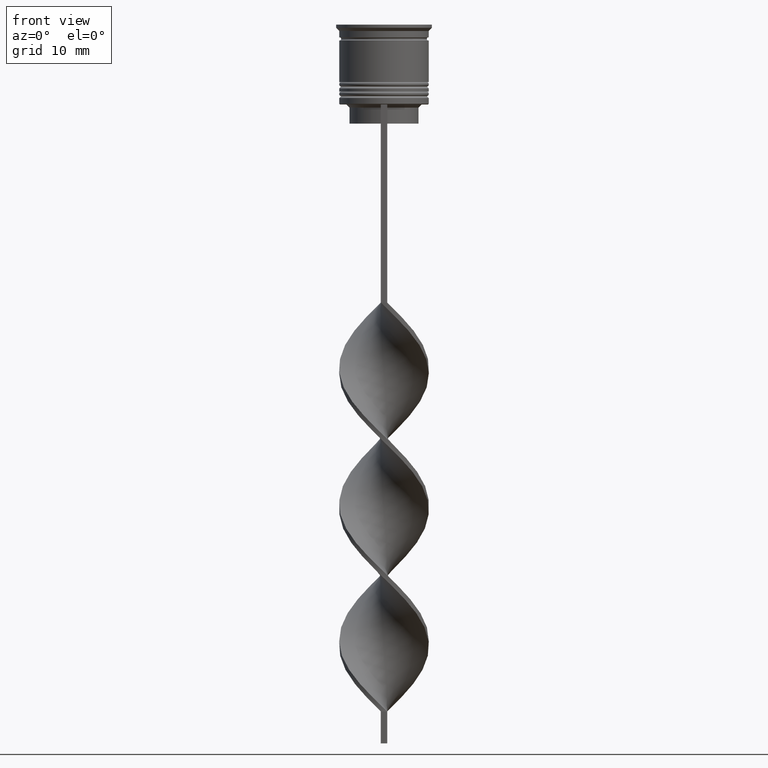
[diagram: clean part render]
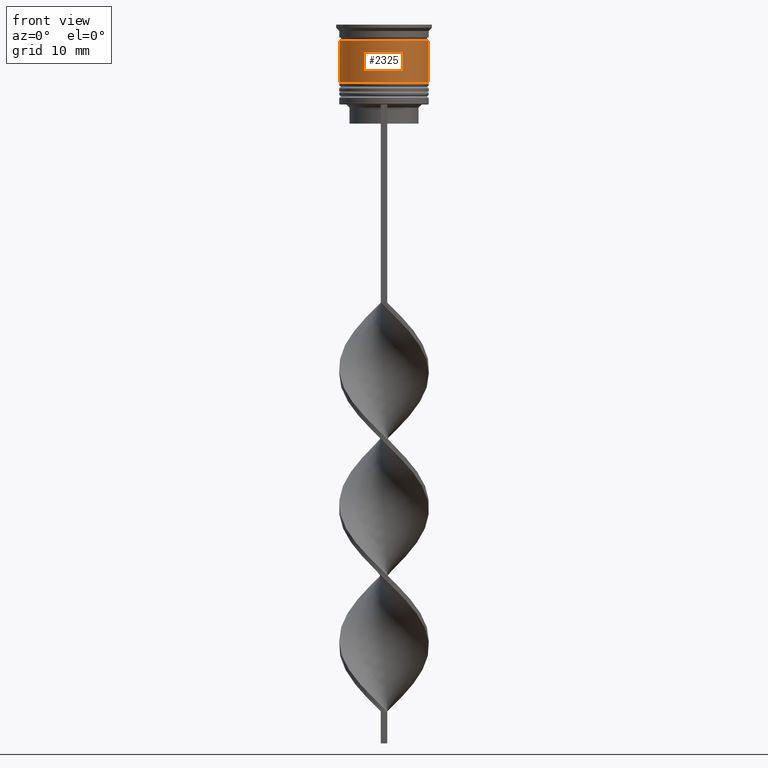
[diagram: same view with one face highlighted and labeled with its STEP entity id]
A machine part, front view. The second image highlights one B-rep face of the part: STEP entity #2325.
In plain terms, the highlighted cylindrical surface (partial cylindrical patch) has radius 7 mm, axis along (-0, -0, 1).
Its self-contained STEP definition (entity closure, byte-faithful):
#80 = CARTESIAN_POINT ( 'NONE',  ( -6.999999999999997335, 8.572527594031471218E-16, -2.500000000000000444 ) ) ;
#279 = CARTESIAN_POINT ( 'NONE',  ( 7.000000000000000888, 0.000000000000000000, -9.000000000000001776 ) ) ;
#294 = EDGE_CURVE ( 'NONE', #536, #2817, #3543, .T. ) ;
#362 = CYLINDRICAL_SURFACE ( 'NONE', #2469, 6.999999999999999112 ) ;
#473 = CARTESIAN_POINT ( 'NONE',  ( -6.999999999999999112, 8.572527594031472204E-16, 0.000000000000000000 ) ) ;
#503 = CARTESIAN_POINT ( 'NONE',  ( 0.000000000000000000, 0.000000000000000000, -9.000000000000001776 ) ) ;
#536 = VERTEX_POINT ( 'NONE', #279 ) ;
#598 = CIRCLE ( 'NONE', #3402, 6.999999999999997335 ) ;
#659 = DIRECTION ( 'NONE',  ( -0.000000000000000000, -0.000000000000000000, 1.000000000000000000 ) ) ;
#680 = DIRECTION ( 'NONE',  ( 1.000000000000000000, 0.000000000000000000, 0.000000000000000000 ) ) ;
#745 = DIRECTION ( 'NONE',  ( -0.000000000000000000, -0.000000000000000000, 1.000000000000000000 ) ) ;
#777 = EDGE_CURVE ( 'NONE', #3562, #2812, #959, .T. ) ;
#831 = CARTESIAN_POINT ( 'NONE',  ( -7.000000000000000888, 8.572527594031474176E-16, -9.000000000000001776 ) ) ;
#959 = LINE ( 'NONE', #473, #2331 ) ;
#1032 = CARTESIAN_POINT ( 'NONE',  ( 6.999999999999999112, 0.000000000000000000, 0.000000000000000000 ) ) ;
#1096 = DIRECTION ( 'NONE',  ( -0.000000000000000000, -0.000000000000000000, 1.000000000000000000 ) ) ;
#1409 = CIRCLE ( 'NONE', #3459, 7.000000000000000888 ) ;
#1624 = VECTOR ( 'NONE', #745, 1000.000000000000000 ) ;
#1686 = EDGE_LOOP ( 'NONE', ( #2109, #2592, #3418, #2345 ) ) ;
#1730 = EDGE_CURVE ( 'NONE', #3562, #536, #1409, .T. ) ;
#1763 = CARTESIAN_POINT ( 'NONE',  ( 6.999999999999997335, 0.000000000000000000, -2.500000000000000444 ) ) ;
#2082 = DIRECTION ( 'NONE',  ( -0.000000000000000000, -0.000000000000000000, 1.000000000000000000 ) ) ;
#2109 = ORIENTED_EDGE ( 'NONE', *, *, #777, .F. ) ;
#2325 = ADVANCED_FACE ( 'NONE', ( #2615 ), #362, .T. ) ;
#2331 = VECTOR ( 'NONE', #2082, 1000.000000000000000 ) ;
#2345 = ORIENTED_EDGE ( 'NONE', *, *, #3250, .F. ) ;
#2469 = AXIS2_PLACEMENT_3D ( 'NONE', #3187, #2633, #680 ) ;
#2592 = ORIENTED_EDGE ( 'NONE', *, *, #1730, .T. ) ;
#2608 = DIRECTION ( 'NONE',  ( 1.000000000000000000, 0.000000000000000000, 0.000000000000000000 ) ) ;
#2615 = FACE_OUTER_BOUND ( 'NONE', #1686, .T. ) ;
#2633 = DIRECTION ( 'NONE',  ( -0.000000000000000000, -0.000000000000000000, 1.000000000000000000 ) ) ;
#2812 = VERTEX_POINT ( 'NONE', #80 ) ;
#2817 = VERTEX_POINT ( 'NONE', #1763 ) ;
#2837 = CARTESIAN_POINT ( 'NONE',  ( 0.000000000000000000, 0.000000000000000000, -2.500000000000000444 ) ) ;
#3083 = DIRECTION ( 'NONE',  ( 1.000000000000000000, 0.000000000000000000, 0.000000000000000000 ) ) ;
#3187 = CARTESIAN_POINT ( 'NONE',  ( 0.000000000000000000, 0.000000000000000000, 0.000000000000000000 ) ) ;
#3250 = EDGE_CURVE ( 'NONE', #2812, #2817, #598, .T. ) ;
#3402 = AXIS2_PLACEMENT_3D ( 'NONE', #2837, #659, #2608 ) ;
#3418 = ORIENTED_EDGE ( 'NONE', *, *, #294, .T. ) ;
#3459 = AXIS2_PLACEMENT_3D ( 'NONE', #503, #1096, #3083 ) ;
#3543 = LINE ( 'NONE', #1032, #1624 ) ;
#3562 = VERTEX_POINT ( 'NONE', #831 ) ;